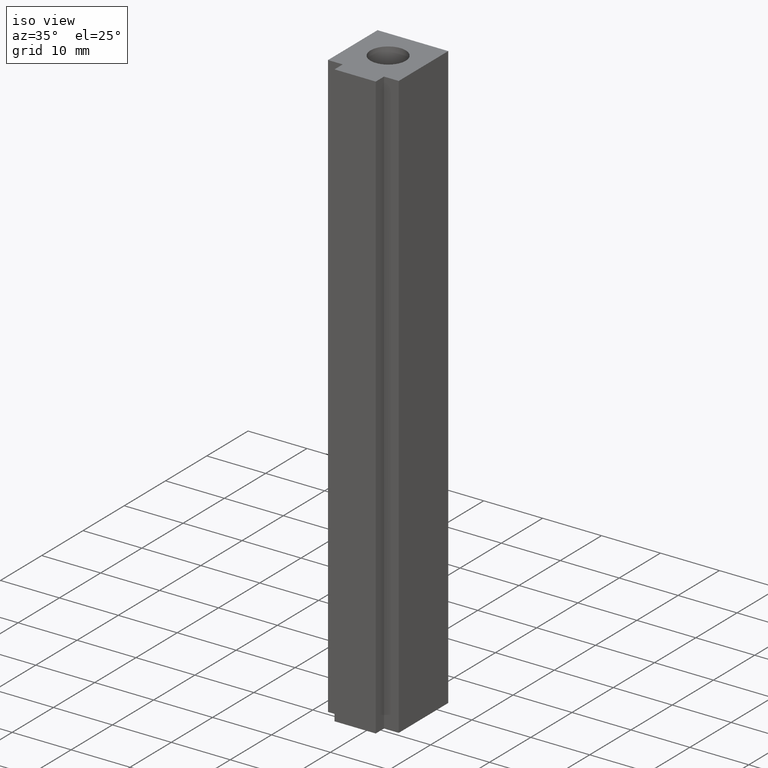
[diagram: clean part render]
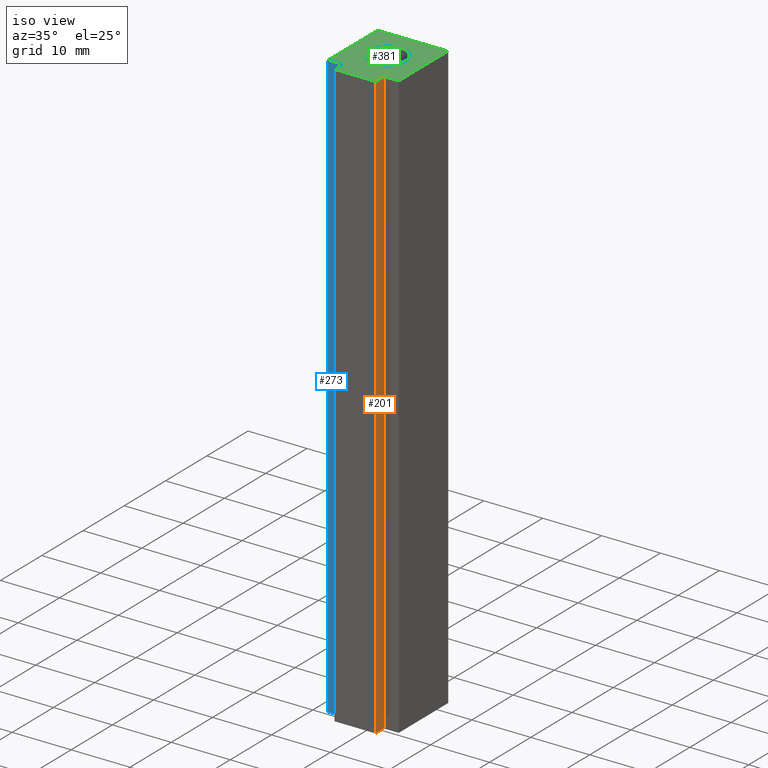
[diagram: same view with three faces highlighted in distinct colors, each labeled with its STEP entity id]
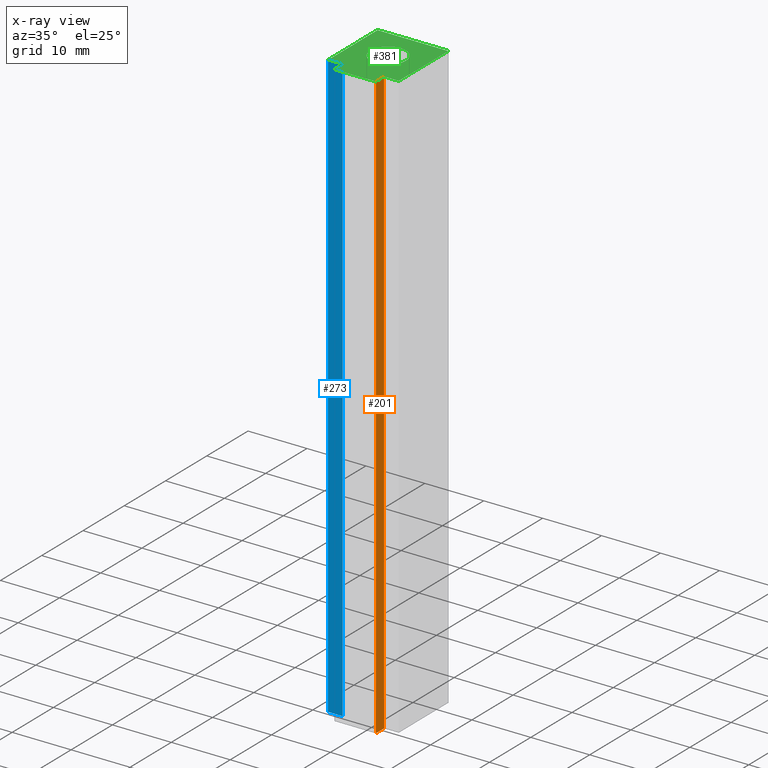
[diagram: x-ray of the same camera — body ghosted, the three highlighted faces saturated]
A machine part, iso view with three faces highlighted in distinct colors.
The next image is the same camera in x-ray (body ghosted, the three faces saturated) — at least one of them is partly hidden behind the body in this view.
Their STEP definitions:

[orange] entity #201 — the highlighted planar face has unit normal (1, 0, 0).
#111=CARTESIAN_POINT('',(3.500000000000001,-12.000000000000002,-50.0));
#112=VERTEX_POINT('',#111);
#119=CARTESIAN_POINT('',(3.5,-14.000000000000004,-50.0));
#120=VERTEX_POINT('',#119);
#121=CARTESIAN_POINT('',(3.5,-14.000000000000004,-50.0));
#122=DIRECTION('',(0.0,1.0,0.0));
#123=VECTOR('',#122,2.000000000000002);
#124=LINE('',#121,#123);
#125=EDGE_CURVE('',#120,#112,#124,.T.);
#171=CARTESIAN_POINT('',(3.500000000000001,-12.000000000000002,0.0));
#172=DIRECTION('',(1.0,0.0,0.0));
#173=DIRECTION('',(0.0,0.0,-1.0));
#174=AXIS2_PLACEMENT_3D('',#171,#172,#173);
#175=PLANE('',#174);
#176=CARTESIAN_POINT('',(3.500000000000001,-12.000000000000002,50.0));
#177=VERTEX_POINT('',#176);
#178=CARTESIAN_POINT('',(3.5,-14.000000000000004,50.0));
#179=VERTEX_POINT('',#178);
#180=CARTESIAN_POINT('',(3.500000000000001,-12.000000000000002,50.0));
#181=DIRECTION('',(0.0,-1.0,0.0));
#182=VECTOR('',#181,2.000000000000002);
#183=LINE('',#180,#182);
#184=EDGE_CURVE('',#177,#179,#183,.T.);
#185=ORIENTED_EDGE('',*,*,#184,.T.);
#186=CARTESIAN_POINT('',(3.5,-14.000000000000004,50.0));
#187=DIRECTION('',(0.0,0.0,-1.0));
#188=VECTOR('',#187,100.0);
#189=LINE('',#186,#188);
#190=EDGE_CURVE('',#179,#120,#189,.T.);
#191=ORIENTED_EDGE('',*,*,#190,.T.);
#192=ORIENTED_EDGE('',*,*,#125,.T.);
#193=CARTESIAN_POINT('',(3.500000000000001,-12.000000000000002,50.0));
#194=DIRECTION('',(0.0,0.0,-1.0));
#195=VECTOR('',#194,100.0);
#196=LINE('',#193,#195);
#197=EDGE_CURVE('',#177,#112,#196,.T.);
#198=ORIENTED_EDGE('',*,*,#197,.F.);
#199=EDGE_LOOP('',(#185,#191,#192,#198));
#200=FACE_OUTER_BOUND('',#199,.T.);
#201=ADVANCED_FACE('',(#200),#175,.T.);

[blue] entity #273 — the highlighted planar face has unit normal (0, -1, 0).
#135=CARTESIAN_POINT('',(-3.500000000000001,-12.000000000000002,-50.0));
#136=VERTEX_POINT('',#135);
#143=CARTESIAN_POINT('',(-5.999999999999996,-12.000000000000004,-50.0));
#144=VERTEX_POINT('',#143);
#145=CARTESIAN_POINT('',(-5.999999999999996,-12.000000000000004,-50.0));
#146=DIRECTION('',(1.0,0.0,0.0));
#147=VECTOR('',#146,2.499999999999995);
#148=LINE('',#145,#147);
#149=EDGE_CURVE('',#144,#136,#148,.T.);
#231=CARTESIAN_POINT('',(-3.500000000000001,-12.000000000000002,50.0));
#232=VERTEX_POINT('',#231);
#239=CARTESIAN_POINT('',(-3.500000000000001,-12.000000000000002,50.0));
#240=DIRECTION('',(0.0,0.0,-1.0));
#241=VECTOR('',#240,100.0);
#242=LINE('',#239,#241);
#243=EDGE_CURVE('',#232,#136,#242,.T.);
#250=CARTESIAN_POINT('',(-3.500000000000001,-12.000000000000002,0.0));
#251=DIRECTION('',(0.0,-1.0,0.0));
#252=DIRECTION('',(0.0,0.0,-1.0));
#253=AXIS2_PLACEMENT_3D('',#250,#251,#252);
#254=PLANE('',#253);
#255=CARTESIAN_POINT('',(-5.999999999999996,-12.000000000000004,50.0));
#256=VERTEX_POINT('',#255);
#257=CARTESIAN_POINT('',(-3.500000000000001,-12.000000000000002,50.0));
#258=DIRECTION('',(-1.0,0.0,0.0));
#259=VECTOR('',#258,2.499999999999995);
#260=LINE('',#257,#259);
#261=EDGE_CURVE('',#232,#256,#260,.T.);
#262=ORIENTED_EDGE('',*,*,#261,.T.);
#263=CARTESIAN_POINT('',(-5.999999999999996,-12.000000000000004,50.0));
#264=DIRECTION('',(0.0,0.0,-1.0));
#265=VECTOR('',#264,100.0);
#266=LINE('',#263,#265);
#267=EDGE_CURVE('',#256,#144,#266,.T.);
#268=ORIENTED_EDGE('',*,*,#267,.T.);
#269=ORIENTED_EDGE('',*,*,#149,.T.);
#270=ORIENTED_EDGE('',*,*,#243,.F.);
#271=EDGE_LOOP('',(#262,#268,#269,#270));
#272=FACE_OUTER_BOUND('',#271,.T.);
#273=ADVANCED_FACE('',(#272),#254,.T.);

[green] entity #381 — the highlighted planar face has unit normal (0, 0, 1).
#84=CARTESIAN_POINT('',(3.0,-6.000000000000002,50.0));
#85=VERTEX_POINT('',#84);
#86=CARTESIAN_POINT('',(4.930381E-032,-6.000000000000002,50.0));
#87=DIRECTION('',(0.0,0.0,-1.0));
#88=DIRECTION('',(-1.0,0.0,0.0));
#89=AXIS2_PLACEMENT_3D('',#86,#87,#88);
#90=CIRCLE('',#89,3.0);
#91=EDGE_CURVE('',#85,#85,#90,.T.);
#176=CARTESIAN_POINT('',(3.500000000000001,-12.000000000000002,50.0));
#177=VERTEX_POINT('',#176);
#178=CARTESIAN_POINT('',(3.5,-14.000000000000004,50.0));
#179=VERTEX_POINT('',#178);
#180=CARTESIAN_POINT('',(3.500000000000001,-12.000000000000002,50.0));
#181=DIRECTION('',(0.0,-1.0,0.0));
#182=VECTOR('',#181,2.000000000000002);
#183=LINE('',#180,#182);
#184=EDGE_CURVE('',#177,#179,#183,.T.);
#207=CARTESIAN_POINT('',(-3.5,-14.000000000000004,50.0));
#208=VERTEX_POINT('',#207);
#209=CARTESIAN_POINT('',(3.5,-14.000000000000004,50.0));
#210=DIRECTION('',(-1.0,0.0,0.0));
#211=VECTOR('',#210,7.000000000000001);
#212=LINE('',#209,#211);
#213=EDGE_CURVE('',#179,#208,#212,.T.);
#231=CARTESIAN_POINT('',(-3.500000000000001,-12.000000000000002,50.0));
#232=VERTEX_POINT('',#231);
#233=CARTESIAN_POINT('',(-3.5,-14.000000000000004,50.0));
#234=DIRECTION('',(0.0,1.0,0.0));
#235=VECTOR('',#234,2.000000000000002);
#236=LINE('',#233,#235);
#237=EDGE_CURVE('',#208,#232,#236,.T.);
#255=CARTESIAN_POINT('',(-5.999999999999996,-12.000000000000004,50.0));
#256=VERTEX_POINT('',#255);
#257=CARTESIAN_POINT('',(-3.500000000000001,-12.000000000000002,50.0));
#258=DIRECTION('',(-1.0,0.0,0.0));
#259=VECTOR('',#258,2.499999999999995);
#260=LINE('',#257,#259);
#261=EDGE_CURVE('',#232,#256,#260,.T.);
#279=CARTESIAN_POINT('',(-6.000000000000001,-2.220446E-015,50.0));
#280=VERTEX_POINT('',#279);
#281=CARTESIAN_POINT('',(-5.999999999999996,-12.000000000000004,50.0));
#282=DIRECTION('',(0.0,1.0,0.0));
#283=VECTOR('',#282,12.000000000000002);
#284=LINE('',#281,#283);
#285=EDGE_CURVE('',#256,#280,#284,.T.);
#303=CARTESIAN_POINT('',(6.000000000000001,-2.220446E-015,50.0));
#304=VERTEX_POINT('',#303);
#305=CARTESIAN_POINT('',(-6.000000000000001,-2.220446E-015,50.0));
#306=DIRECTION('',(1.0,0.0,0.0));
#307=VECTOR('',#306,12.000000000000002);
#308=LINE('',#305,#307);
#309=EDGE_CURVE('',#280,#304,#308,.T.);
#327=CARTESIAN_POINT('',(5.999999999999996,-12.000000000000004,50.0));
#328=VERTEX_POINT('',#327);
#329=CARTESIAN_POINT('',(6.000000000000001,-2.220446E-015,50.0));
#330=DIRECTION('',(0.0,-1.0,0.0));
#331=VECTOR('',#330,12.000000000000002);
#332=LINE('',#329,#331);
#333=EDGE_CURVE('',#304,#328,#332,.T.);
#351=CARTESIAN_POINT('',(5.999999999999996,-12.000000000000004,50.0));
#352=DIRECTION('',(-1.0,0.0,0.0));
#353=VECTOR('',#352,2.499999999999995);
#354=LINE('',#351,#353);
#355=EDGE_CURVE('',#328,#177,#354,.T.);
#363=CARTESIAN_POINT('',(1.734723E-016,-6.80769230769231,50.0));
#364=DIRECTION('',(0.0,0.0,1.0));
#365=DIRECTION('',(1.0,0.0,0.0));
#366=AXIS2_PLACEMENT_3D('',#363,#364,#365);
#367=PLANE('',#366);
#368=ORIENTED_EDGE('',*,*,#184,.F.);
#369=ORIENTED_EDGE('',*,*,#355,.F.);
#370=ORIENTED_EDGE('',*,*,#333,.F.);
#371=ORIENTED_EDGE('',*,*,#309,.F.);
#372=ORIENTED_EDGE('',*,*,#285,.F.);
#373=ORIENTED_EDGE('',*,*,#261,.F.);
#374=ORIENTED_EDGE('',*,*,#237,.F.);
#375=ORIENTED_EDGE('',*,*,#213,.F.);
#376=EDGE_LOOP('',(#368,#369,#370,#371,#372,#373,#374,#375));
#377=FACE_OUTER_BOUND('',#376,.T.);
#378=ORIENTED_EDGE('',*,*,#91,.T.);
#379=EDGE_LOOP('',(#378));
#380=FACE_BOUND('',#379,.T.);
#381=ADVANCED_FACE('',(#377,#380),#367,.T.);